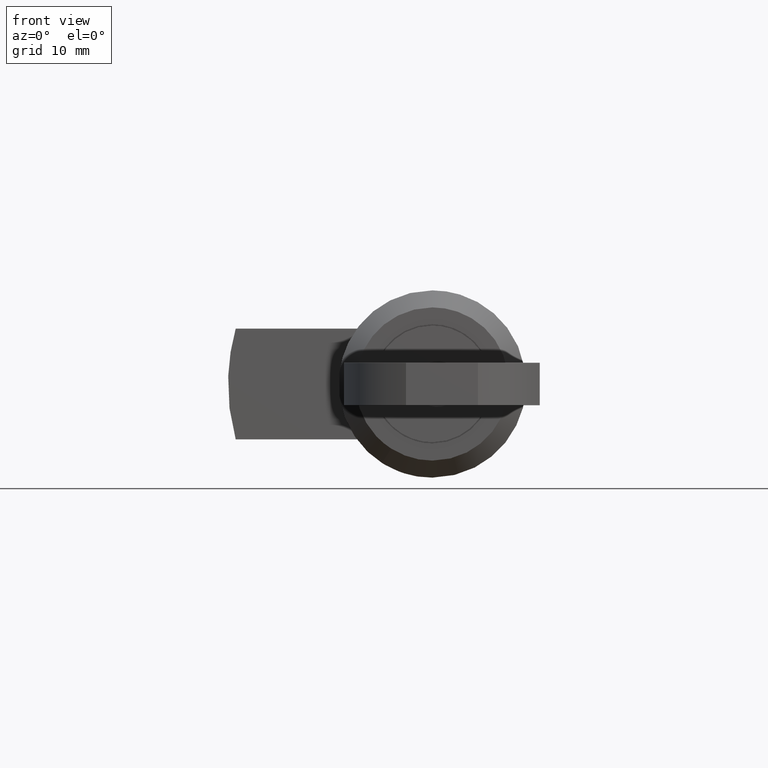
[diagram: clean part render]
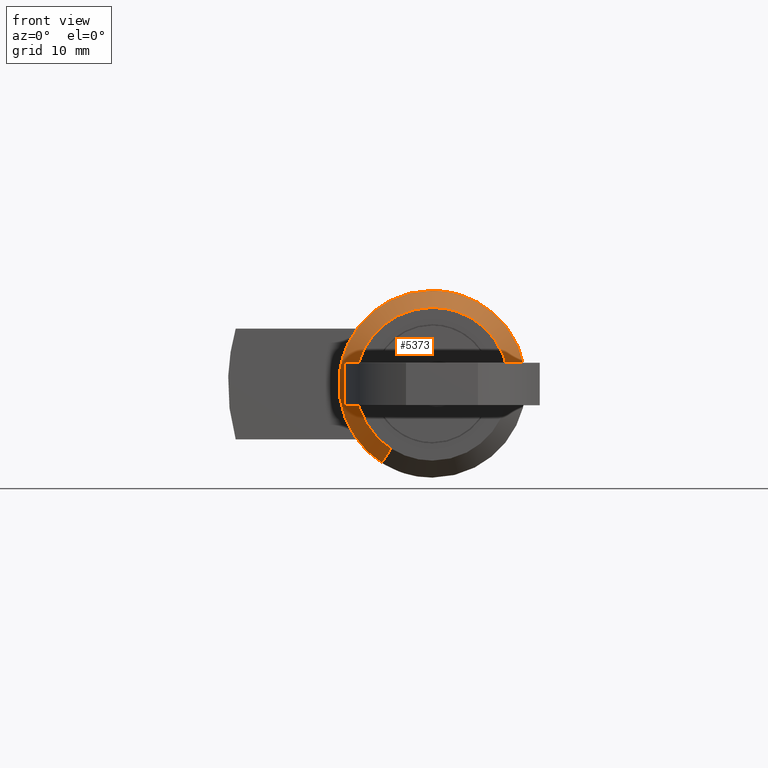
[diagram: same view with one face highlighted and labeled with its STEP entity id]
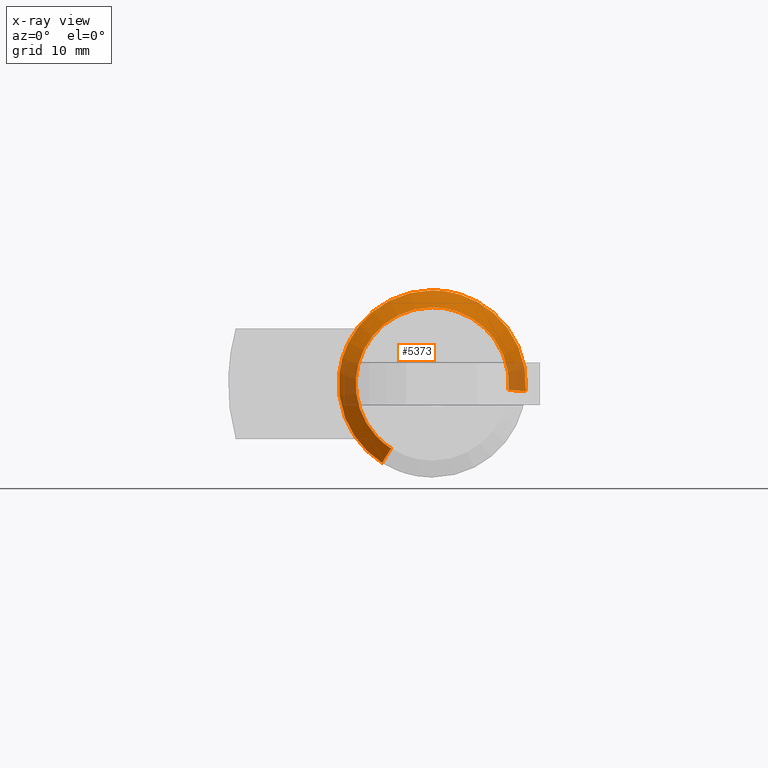
[diagram: x-ray of the same camera — body ghosted, the highlighted face saturated]
A machine part, front view. The second image highlights one B-rep face of the part: STEP entity #5373.
The next image is the same camera in x-ray: the body ghosted, the highlighted face saturated — about 17% of this face is hidden behind the body in this view.
In plain terms, the highlighted face is a freeform B-spline surface patch.
Its self-contained STEP definition (entity closure, byte-faithful):
#5237=CARTESIAN_POINT('',(-3.050000144867282,4.813764829984976,-7.545208795714390));
#5238=CARTESIAN_POINT('',(-3.050000144867282,9.344027954356125,-4.654947983970890));
#5239=CARTESIAN_POINT('',(-3.050000144867283,8.922410560703055,0.702208940117337));
#5240=CARTESIAN_POINT('',(-3.050000144867282,8.220201620585717,9.624619500820392));
#5241=CARTESIAN_POINT('',(-3.050000144867283,-0.702208940117337,8.922410560703055));
#5242=CARTESIAN_POINT('',(-3.050000144867282,-9.624619500820392,8.220201620585717));
#5243=CARTESIAN_POINT('',(-3.050000144867283,-8.922410560703055,-0.702208940117337));
#5244=CARTESIAN_POINT('',(-0.948750045063263,5.943923863393602,-9.316646782529681));
#5245=CARTESIAN_POINT('',(-0.948750045063263,11.537786472690566,-5.747820548364193));
#5246=CARTESIAN_POINT('',(-0.948750045063263,11.017183207706370,0.867071122846023));
#5247=CARTESIAN_POINT('',(-0.948750045063263,10.150112084860345,11.884254330552389));
#5248=CARTESIAN_POINT('',(-0.948750045063263,-0.867071122846023,11.017183207706370));
#5249=CARTESIAN_POINT('',(-0.948750045063263,-11.884254330552389,10.150112084860345));
#5250=CARTESIAN_POINT('',(-0.948750045063263,-11.017183207706370,-0.867071122846023));
#5258=(BOUNDED_SURFACE()B_SPLINE_SURFACE(2,1,((#5237,#5244),(#5238,#5245),(#5239,#5246),(#5240,#5247),(#5241,#5248),(#5242,#5249),(#5243,#5250)),.UNSPECIFIED.,.F.,.F.,.U.)B_SPLINE_SURFACE_WITH_KNOTS((3,2,2,3),(2,2),(0.0,12.451011748189149,30.761323142584970,49.071634536980767),(0.0,2.971616389080821),.UNSPECIFIED.)GEOMETRIC_REPRESENTATION_ITEM()RATIONAL_B_SPLINE_SURFACE(((0.872532871172386,0.872532871172386),(0.800832611206852,0.800832611206852),(1.0,1.0),(0.707106781186548,0.707106781186548),(1.0,1.0),(0.707106781186548,0.707106781186548),(1.0,1.0)))REPRESENTATION_ITEM('')SURFACE());
#5259=CARTESIAN_POINT('',(-1.000000047497294,10.923105821719210,1.298372327912649));
#5260=VERTEX_POINT('',#5259);
#5261=CARTESIAN_POINT('',(-1.000000047496332,5.916359008939392,-9.273440977962377));
#5262=VERTEX_POINT('',#5261);
#5263=CARTESIAN_POINT('',(-1.000000047497294,10.923105821719210,1.298372327912649));
#5264=CARTESIAN_POINT('',(-1.000000047497508,11.000000522472000,0.651463166814729));
#5265=CARTESIAN_POINT('',(-1.000000047497508,11.000000522472000,0.0));
#5266=CARTESIAN_POINT('',(-1.000000047497508,11.000000522472000,-6.030130502549076));
#5267=CARTESIAN_POINT('',(-1.000000047496332,5.916359008939392,-9.273440977962377));
#5275=(BOUNDED_CURVE()B_SPLINE_CURVE(2,(#5263,#5264,#5265,#5266,#5267),.UNSPECIFIED.,.F.,.U.)B_SPLINE_CURVE_WITH_KNOTS((3,2,3),(0.229562540277417,0.250000000000000,0.407950112626960),.UNSPECIFIED.)CURVE()GEOMETRIC_REPRESENTATION_ITEM()RATIONAL_B_SPLINE_CURVE((0.956026885043735,0.976056026549930,1.0,0.814949932402970,0.863729296954559))REPRESENTATION_ITEM(''));
#5276=EDGE_CURVE('',#5260,#5262,#5275,.T.);
#5277=ORIENTED_EDGE('',*,*,#5276,.T.);
#5278=CARTESIAN_POINT('',(-3.000000142491722,4.840657370946183,-7.587360800153167));
#5279=VERTEX_POINT('',#5278);
#5280=CARTESIAN_POINT('',(-3.000000142491722,4.840657370946183,-7.587360800153167));
#5281=CARTESIAN_POINT('',(-1.000000047496332,5.916359008939392,-9.273440977962377));
#5282=QUASI_UNIFORM_CURVE('',1,(#5280,#5281),.UNSPECIFIED.,.F.,.U.);
#5283=EDGE_CURVE('',#5279,#5262,#5282,.T.);
#5284=ORIENTED_EDGE('',*,*,#5283,.F.);
#5285=CARTESIAN_POINT('',(-3.000000142492410,0.0,9.000000427476889));
#5286=VERTEX_POINT('',#5285);
#5287=CARTESIAN_POINT('',(-3.000000142492410,0.0,9.000000427476889));
#5288=CARTESIAN_POINT('',(-3.000000142492410,9.000000427476889,9.000000427476889));
#5289=CARTESIAN_POINT('',(-3.000000142492410,9.000000427476889,0.0));
#5290=CARTESIAN_POINT('',(-3.000000142492411,9.000000427476889,-4.933743138455249));
#5291=CARTESIAN_POINT('',(-3.000000142491723,4.840657370946183,-7.587360800153167));
#5299=(BOUNDED_CURVE()B_SPLINE_CURVE(2,(#5287,#5288,#5289,#5290,#5291),.UNSPECIFIED.,.F.,.U.)B_SPLINE_CURVE_WITH_KNOTS((3,2,3),(0.0,0.250000000000000,0.407950112627119),.UNSPECIFIED.)CURVE()GEOMETRIC_REPRESENTATION_ITEM()RATIONAL_B_SPLINE_CURVE((1.0,0.707106781186548,1.0,0.814949932402783,0.863729296954658))REPRESENTATION_ITEM(''));
#5300=EDGE_CURVE('',#5286,#5279,#5299,.T.);
#5301=ORIENTED_EDGE('',*,*,#5300,.F.);
#5302=CARTESIAN_POINT('',(-3.000000142487898,-8.972256429759078,-0.706131895124589));
#5303=VERTEX_POINT('',#5302);
#5304=CARTESIAN_POINT('',(-3.000000142487898,-8.972256429759078,-0.706131895124589));
#5305=CARTESIAN_POINT('',(-3.000000142492410,-9.000000427476889,-0.353610979898975));
#5306=CARTESIAN_POINT('',(-3.000000142492410,-9.000000427476889,0.0));
#5307=CARTESIAN_POINT('',(-3.000000142492410,-9.000000427476889,9.000000427476889));
#5308=CARTESIAN_POINT('',(-3.000000142492410,0.0,9.000000427476889));
#5316=(BOUNDED_CURVE()B_SPLINE_CURVE(2,(#5304,#5305,#5306,#5307,#5308),.UNSPECIFIED.,.F.,.U.)B_SPLINE_CURVE_WITH_KNOTS((3,2,3),(0.736331300631461,0.750000000000000,1.0),.UNSPECIFIED.)CURVE()GEOMETRIC_REPRESENTATION_ITEM()RATIONAL_B_SPLINE_CURVE((0.969723356169090,0.983986122579821,1.0,0.707106781186548,1.0))REPRESENTATION_ITEM(''));
#5317=EDGE_CURVE('',#5303,#5286,#5316,.T.);
#5318=ORIENTED_EDGE('',*,*,#5317,.F.);
#5319=CARTESIAN_POINT('',(-1.000000047495325,-10.966091191926679,-0.863050094015688));
#5320=VERTEX_POINT('',#5319);
#5321=CARTESIAN_POINT('',(-3.000000142487898,-8.972256429759078,-0.706131895124589));
#5322=CARTESIAN_POINT('',(-1.000000047495325,-10.966091191926679,-0.863050094015688));
#5323=QUASI_UNIFORM_CURVE('',1,(#5321,#5322),.UNSPECIFIED.,.F.,.U.);
#5324=EDGE_CURVE('',#5303,#5320,#5323,.T.);
#5325=ORIENTED_EDGE('',*,*,#5324,.T.);
#5326=CARTESIAN_POINT('',(-1.000000047498739,-10.979484106171240,-0.671520853395347));
#5327=VERTEX_POINT('',#5326);
#5328=CARTESIAN_POINT('',(-1.000000047495325,-10.966091191926678,-0.863050094015688));
#5329=CARTESIAN_POINT('',(-1.000000047497508,-10.973623431424580,-0.767343916809242));
#5330=CARTESIAN_POINT('',(-1.000000047498739,-10.979484106171240,-0.671520853395347));
#5338=(BOUNDED_CURVE()B_SPLINE_CURVE(2,(#5328,#5329,#5330),.UNSPECIFIED.,.F.,.U.)B_SPLINE_CURVE_WITH_KNOTS((3,3),(0.736331300632250,0.739333168323861),.UNSPECIFIED.)CURVE()GEOMETRIC_REPRESENTATION_ITEM()RATIONAL_B_SPLINE_CURVE((0.969723356170736,0.972855690603391,0.976072483346325))REPRESENTATION_ITEM(''));
#5339=EDGE_CURVE('',#5320,#5327,#5338,.T.);
#5340=ORIENTED_EDGE('',*,*,#5339,.T.);
#5341=CARTESIAN_POINT('',(-1.000000047497508,0.0,11.000000522472000));
#5342=VERTEX_POINT('',#5341);
#5343=CARTESIAN_POINT('',(-1.000000047498739,-10.979484106171240,-0.671520853395347));
#5344=CARTESIAN_POINT('',(-1.000000047497508,-11.000000522472005,-0.336073837171597));
#5345=CARTESIAN_POINT('',(-1.000000047497508,-11.000000522472000,0.0));
#5346=CARTESIAN_POINT('',(-1.000000047497508,-11.000000522472002,11.000000522472002));
#5347=CARTESIAN_POINT('',(-1.000000047497508,0.0,11.000000522472000));
#5355=(BOUNDED_CURVE()B_SPLINE_CURVE(2,(#5343,#5344,#5345,#5346,#5347),.UNSPECIFIED.,.F.,.U.)B_SPLINE_CURVE_WITH_KNOTS((3,2,3),(0.739333168323861,0.750000000000000,1.0),.UNSPECIFIED.)CURVE()GEOMETRIC_REPRESENTATION_ITEM()RATIONAL_B_SPLINE_CURVE((0.976072483346325,0.987503029343338,1.0,0.707106781186547,1.0))REPRESENTATION_ITEM(''));
#5356=EDGE_CURVE('',#5327,#5342,#5355,.T.);
#5357=ORIENTED_EDGE('',*,*,#5356,.T.);
#5358=CARTESIAN_POINT('',(-1.000000047497508,0.0,11.000000522472000));
#5359=CARTESIAN_POINT('',(-1.000000047497508,9.769924136116810,11.000000522472002));
#5360=CARTESIAN_POINT('',(-1.000000047497294,10.923105821719210,1.298372327912649));
#5368=(BOUNDED_CURVE()B_SPLINE_CURVE(2,(#5358,#5359,#5360),.UNSPECIFIED.,.F.,.U.)B_SPLINE_CURVE_WITH_KNOTS((3,3),(0.0,0.229562540277417),.UNSPECIFIED.)CURVE()GEOMETRIC_REPRESENTATION_ITEM()RATIONAL_B_SPLINE_CURVE((1.0,0.731050754636618,0.956026885043735))REPRESENTATION_ITEM(''));
#5369=EDGE_CURVE('',#5342,#5260,#5368,.T.);
#5370=ORIENTED_EDGE('',*,*,#5369,.T.);
#5371=EDGE_LOOP('',(#5277,#5284,#5301,#5318,#5325,#5340,#5357,#5370));
#5372=FACE_OUTER_BOUND('',#5371,.T.);
#5373=ADVANCED_FACE('',(#5372),#5258,.T.);